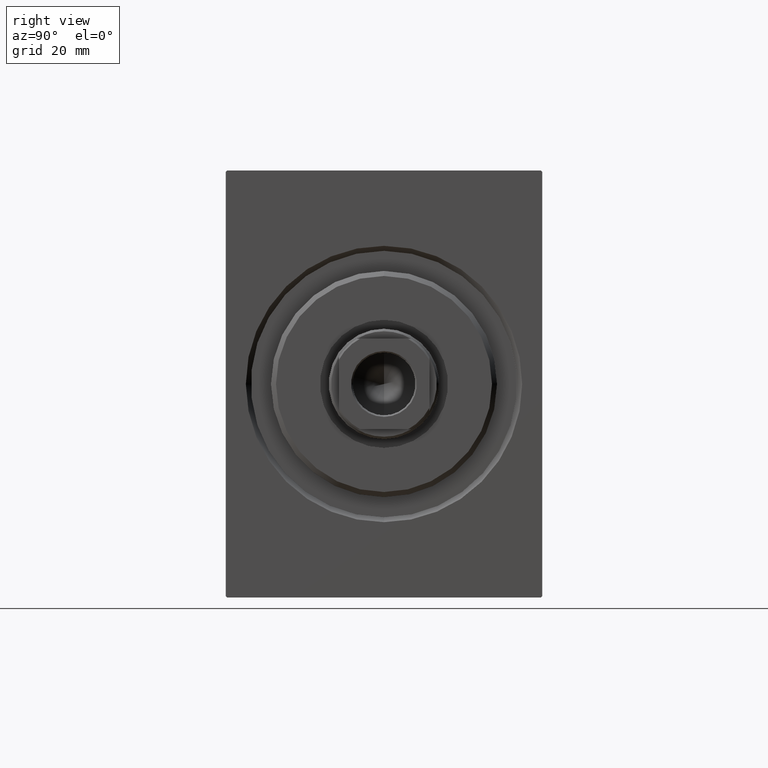
[diagram: clean part render]
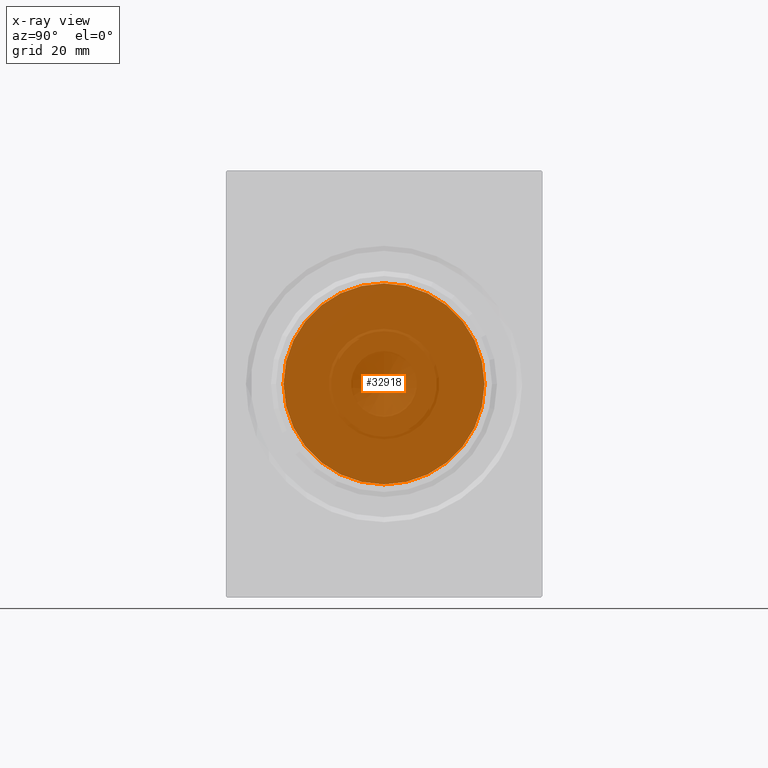
[diagram: x-ray — body ghosted, one internal face saturated and labeled with its STEP entity id]
A machine part, right view, then the same camera in x-ray: the body is ghosted and one INTERNAL B-rep face — a face not visible from any outside direction — is saturated and labeled: STEP entity #32918.
In plain terms, the highlighted planar face has unit normal (1, 0, -0).
Its self-contained STEP definition (entity closure, byte-faithful):
#937 = VERTEX_POINT ( 'NONE', #34621 ) ;
#3632 = DIRECTION ( 'NONE',  ( -1.000000000000000000, 0.000000000000000000, 0.000000000000000000 ) ) ;
#6346 = EDGE_CURVE ( 'NONE', #937, #29087, #10605, .T. ) ;
#6879 = ORIENTED_EDGE ( 'NONE', *, *, #41869, .T. ) ;
#7536 = PLANE ( 'NONE',  #32254 ) ;
#9707 = EDGE_LOOP ( 'NONE', ( #6879, #19981 ) ) ;
#9767 = CARTESIAN_POINT ( 'NONE',  ( 76.00000000000000000, 0.000000000000000000, 20.00000000000000000 ) ) ;
#10605 = CIRCLE ( 'NONE', #34859, 20.00000000000000000 ) ;
#11624 = DIRECTION ( 'NONE',  ( 0.000000000000000000, 0.000000000000000000, 1.000000000000000000 ) ) ;
#17713 = DIRECTION ( 'NONE',  ( -1.000000000000000000, 0.000000000000000000, 0.000000000000000000 ) ) ;
#17895 = CIRCLE ( 'NONE', #33853, 20.00000000000000000 ) ;
#19981 = ORIENTED_EDGE ( 'NONE', *, *, #6346, .T. ) ;
#20623 = DIRECTION ( 'NONE',  ( -1.000000000000000000, 0.000000000000000000, 0.000000000000000000 ) ) ;
#20767 = CARTESIAN_POINT ( 'NONE',  ( 76.00000000000000000, 0.000000000000000000, 0.000000000000000000 ) ) ;
#23383 = DIRECTION ( 'NONE',  ( 0.000000000000000000, 0.000000000000000000, 1.000000000000000000 ) ) ;
#23446 = CARTESIAN_POINT ( 'NONE',  ( 76.00000000000000000, 0.000000000000000000, 0.000000000000000000 ) ) ;
#27341 = DIRECTION ( 'NONE',  ( 0.000000000000000000, 0.000000000000000000, 1.000000000000000000 ) ) ;
#27692 = CARTESIAN_POINT ( 'NONE',  ( 76.00000000000000000, 0.000000000000000000, 0.000000000000000000 ) ) ;
#29087 = VERTEX_POINT ( 'NONE', #9767 ) ;
#32254 = AXIS2_PLACEMENT_3D ( 'NONE', #20767, #3632, #23383 ) ;
#32918 = ADVANCED_FACE ( 'NONE', ( #40957 ), #7536, .T. ) ;
#33853 = AXIS2_PLACEMENT_3D ( 'NONE', #23446, #20623, #27341 ) ;
#34621 = CARTESIAN_POINT ( 'NONE',  ( 76.00000000000000000, 2.449293598294706513E-15, -20.00000000000000000 ) ) ;
#34859 = AXIS2_PLACEMENT_3D ( 'NONE', #27692, #17713, #11624 ) ;
#40957 = FACE_OUTER_BOUND ( 'NONE', #9707, .T. ) ;
#41869 = EDGE_CURVE ( 'NONE', #29087, #937, #17895, .T. ) ;